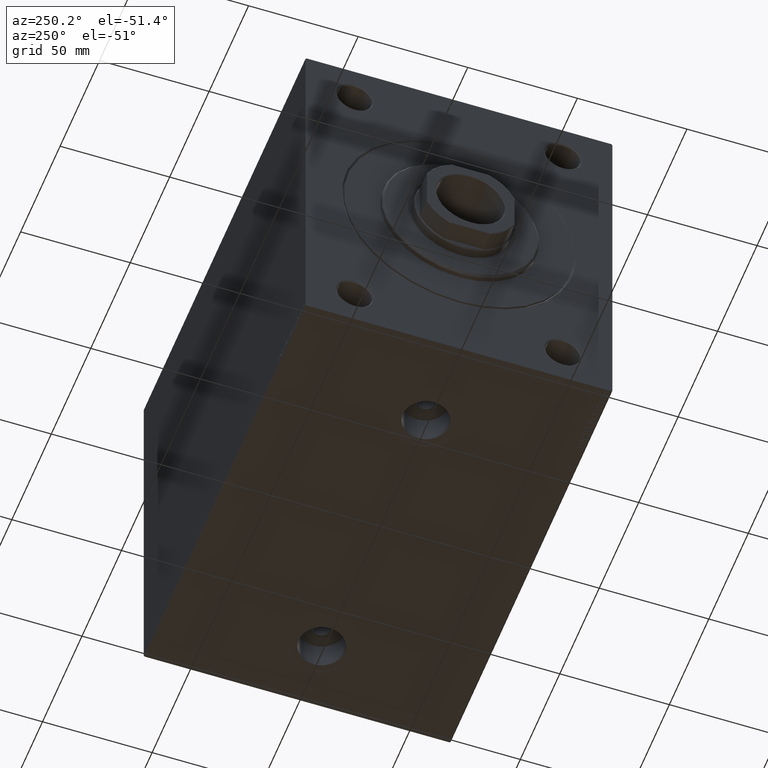
[diagram: clean part render]
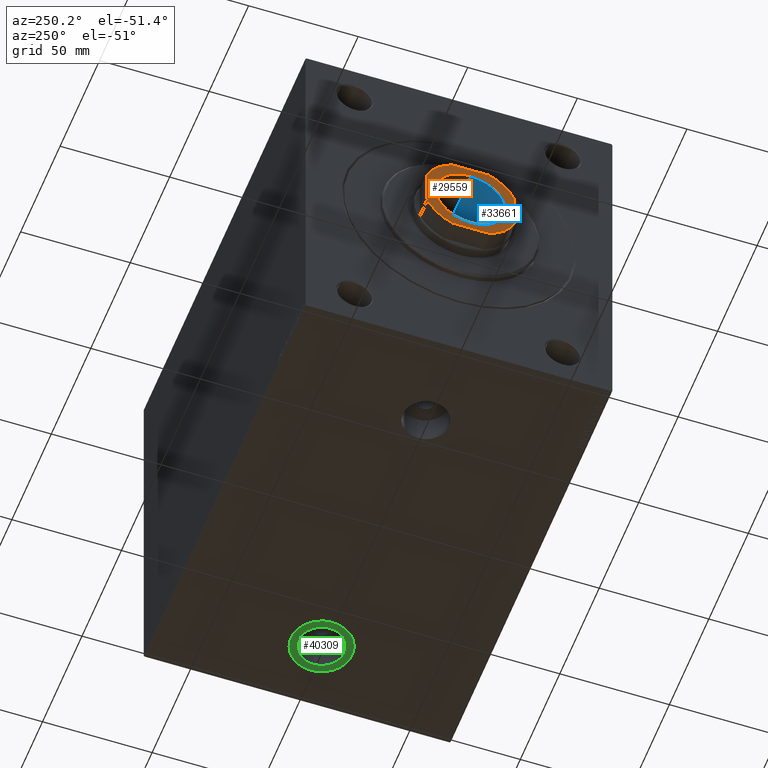
[diagram: same view with three faces highlighted in distinct colors, each labeled with its STEP entity id]
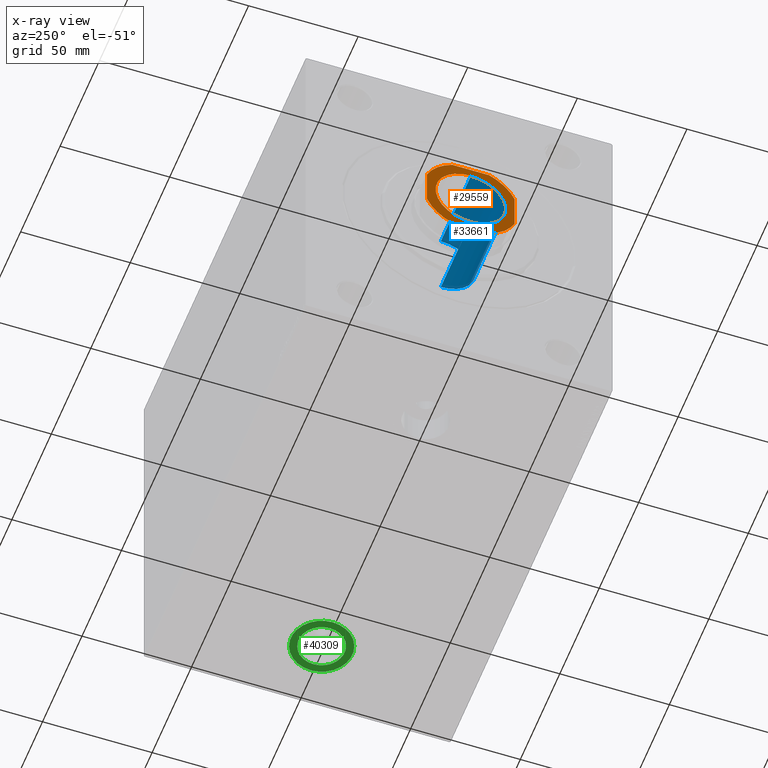
[diagram: x-ray of the same camera — body ghosted, the three highlighted faces saturated]
A machine part, auxiliary view with three faces highlighted in distinct colors.
The next image is the same camera in x-ray (body ghosted, the three faces saturated) — at least one of them is partly hidden behind the body in this view.
Their STEP definitions:

[orange] entity #29559 — the highlighted planar face has unit normal (-1, 0, 0).
#63 = CIRCLE ( 'NONE', #19261, 16.05000000000000782 ) ;
#158 = VERTEX_POINT ( 'NONE', #31701 ) ;
#343 = ORIENTED_EDGE ( 'NONE', *, *, #881, .T. ) ;
#509 = CARTESIAN_POINT ( 'NONE',  ( 16.05000000000000782, 0.000000000000000000, 194.0000000000000000 ) ) ;
#881 = EDGE_CURVE ( 'NONE', #14199, #7700, #14879, .T. ) ;
#1014 = DIRECTION ( 'NONE',  ( 2.602085213965210642E-16, -1.000000000000000000, 0.000000000000000000 ) ) ;
#1492 = ORIENTED_EDGE ( 'NONE', *, *, #15935, .T. ) ;
#1916 = CARTESIAN_POINT ( 'NONE',  ( 0.000000000000000000, 0.000000000000000000, 194.0000000000000000 ) ) ;
#2940 = EDGE_CURVE ( 'NONE', #23226, #22322, #63, .T. ) ;
#3500 = CARTESIAN_POINT ( 'NONE',  ( 8.419619943916458737, 19.99999999999999289, 194.0000000000000000 ) ) ;
#5491 = DIRECTION ( 'NONE',  ( -0.000000000000000000, 0.000000000000000000, 1.000000000000000000 ) ) ;
#5597 = CIRCLE ( 'NONE', #39534, 16.05000000000000782 ) ;
#5868 = DIRECTION ( 'NONE',  ( 1.000000000000000000, 0.000000000000000000, 0.000000000000000000 ) ) ;
#6622 = ORIENTED_EDGE ( 'NONE', *, *, #36867, .T. ) ;
#6777 = CARTESIAN_POINT ( 'NONE',  ( 0.000000000000000000, 0.000000000000000000, 194.0000000000000000 ) ) ;
#6823 = EDGE_CURVE ( 'NONE', #26363, #36833, #35142, .T. ) ;
#7502 = LINE ( 'NONE', #18129, #23130 ) ;
#7593 = DIRECTION ( 'NONE',  ( 1.000000000000000000, 0.000000000000000000, 0.000000000000000000 ) ) ;
#7700 = VERTEX_POINT ( 'NONE', #38657 ) ;
#8441 = AXIS2_PLACEMENT_3D ( 'NONE', #44324, #22830, #22602 ) ;
#9450 = CARTESIAN_POINT ( 'NONE',  ( -16.05000000000000782, 1.965558112631502599E-15, 194.0000000000000000 ) ) ;
#9561 = DIRECTION ( 'NONE',  ( 0.000000000000000000, -0.000000000000000000, -1.000000000000000000 ) ) ;
#9902 = VERTEX_POINT ( 'NONE', #3500 ) ;
#10309 = CARTESIAN_POINT ( 'NONE',  ( 20.00000000000000000, -8.419619943916444527, 194.0000000000000000 ) ) ;
#10736 = AXIS2_PLACEMENT_3D ( 'NONE', #30128, #33614, #40076 ) ;
#11519 = CARTESIAN_POINT ( 'NONE',  ( 0.000000000000000000, 0.000000000000000000, 194.0000000000000000 ) ) ;
#11633 = CARTESIAN_POINT ( 'NONE',  ( -8.419619943916336169, -20.00000000000001066, 194.0000000000000000 ) ) ;
#12389 = LINE ( 'NONE', #33431, #39446 ) ;
#13106 = CARTESIAN_POINT ( 'NONE',  ( 0.000000000000000000, 0.000000000000000000, 194.0000000000000000 ) ) ;
#13538 = ORIENTED_EDGE ( 'NONE', *, *, #27160, .T. ) ;
#13707 = CIRCLE ( 'NONE', #10736, 21.69999999999986429 ) ;
#14199 = VERTEX_POINT ( 'NONE', #29720 ) ;
#14501 = EDGE_CURVE ( 'NONE', #9902, #158, #7502, .T. ) ;
#14879 = LINE ( 'NONE', #25490, #36922 ) ;
#15220 = DIRECTION ( 'NONE',  ( 0.000000000000000000, -0.000000000000000000, -1.000000000000000000 ) ) ;
#15386 = ORIENTED_EDGE ( 'NONE', *, *, #14501, .T. ) ;
#15754 = AXIS2_PLACEMENT_3D ( 'NONE', #13106, #5491, #44990 ) ;
#15935 = EDGE_CURVE ( 'NONE', #158, #14199, #29085, .T. ) ;
#16258 = CARTESIAN_POINT ( 'NONE',  ( 19.99999999999999289, 8.419619943916455185, 194.0000000000000000 ) ) ;
#18005 = AXIS2_PLACEMENT_3D ( 'NONE', #24507, #31703, #38624 ) ;
#18129 = CARTESIAN_POINT ( 'NONE',  ( -20.00000000000000711, 19.99999999999998934, 194.0000000000000000 ) ) ;
#19261 = AXIS2_PLACEMENT_3D ( 'NONE', #11519, #15220, #7593 ) ;
#19740 = EDGE_LOOP ( 'NONE', ( #40856, #40414 ) ) ;
#19822 = PLANE ( 'NONE',  #8441 ) ;
#20139 = DIRECTION ( 'NONE',  ( 1.000000000000000000, 0.000000000000000000, 0.000000000000000000 ) ) ;
#22322 = VERTEX_POINT ( 'NONE', #509 ) ;
#22602 = DIRECTION ( 'NONE',  ( 1.000000000000000000, 0.000000000000000000, 0.000000000000000000 ) ) ;
#22830 = DIRECTION ( 'NONE',  ( -0.000000000000000000, 0.000000000000000000, 1.000000000000000000 ) ) ;
#23116 = VERTEX_POINT ( 'NONE', #42750 ) ;
#23118 = CIRCLE ( 'NONE', #15754, 21.69999999999989626 ) ;
#23130 = VECTOR ( 'NONE', #39387, 1000.000000000000000 ) ;
#23226 = VERTEX_POINT ( 'NONE', #9450 ) ;
#24402 = EDGE_LOOP ( 'NONE', ( #25820, #43788, #15386, #1492, #343, #6622, #38323, #13538 ) ) ;
#24507 = CARTESIAN_POINT ( 'NONE',  ( 0.000000000000000000, 0.000000000000000000, 194.0000000000000000 ) ) ;
#25490 = CARTESIAN_POINT ( 'NONE',  ( -20.00000000000000711, 19.99999999999998934, 194.0000000000000000 ) ) ;
#25727 = AXIS2_PLACEMENT_3D ( 'NONE', #1916, #44192, #20139 ) ;
#25820 = ORIENTED_EDGE ( 'NONE', *, *, #6823, .T. ) ;
#26363 = VERTEX_POINT ( 'NONE', #10309 ) ;
#26976 = FACE_BOUND ( 'NONE', #19740, .T. ) ;
#27160 = EDGE_CURVE ( 'NONE', #23116, #26363, #23118, .T. ) ;
#27960 = DIRECTION ( 'NONE',  ( -2.602085213965210149E-16, 1.000000000000000000, -0.000000000000000000 ) ) ;
#29085 = CIRCLE ( 'NONE', #18005, 21.69999999999986429 ) ;
#29559 = ADVANCED_FACE ( 'NONE', ( #26976, #40173 ), #19822, .T. ) ;
#29720 = CARTESIAN_POINT ( 'NONE',  ( -20.00000000000000355, 8.419619943916343274, 194.0000000000000000 ) ) ;
#29863 = EDGE_CURVE ( 'NONE', #44562, #23116, #12389, .T. ) ;
#30128 = CARTESIAN_POINT ( 'NONE',  ( 0.000000000000000000, 0.000000000000000000, 194.0000000000000000 ) ) ;
#31701 = CARTESIAN_POINT ( 'NONE',  ( -8.419619943916378801, 19.99999999999999289, 194.0000000000000000 ) ) ;
#31703 = DIRECTION ( 'NONE',  ( -0.000000000000000000, 0.000000000000000000, 1.000000000000000000 ) ) ;
#33431 = CARTESIAN_POINT ( 'NONE',  ( -19.99999999999999645, -20.00000000000001066, 194.0000000000000000 ) ) ;
#33614 = DIRECTION ( 'NONE',  ( -0.000000000000000000, 0.000000000000000000, 1.000000000000000000 ) ) ;
#35142 = LINE ( 'NONE', #37917, #43706 ) ;
#36833 = VERTEX_POINT ( 'NONE', #16258 ) ;
#36867 = EDGE_CURVE ( 'NONE', #7700, #44562, #13707, .T. ) ;
#36922 = VECTOR ( 'NONE', #1014, 1000.000000000000000 ) ;
#36973 = EDGE_CURVE ( 'NONE', #22322, #23226, #5597, .T. ) ;
#37917 = CARTESIAN_POINT ( 'NONE',  ( 19.99999999999999289, 19.99999999999999289, 194.0000000000000000 ) ) ;
#38323 = ORIENTED_EDGE ( 'NONE', *, *, #29863, .T. ) ;
#38624 = DIRECTION ( 'NONE',  ( 1.000000000000000000, 0.000000000000000000, 0.000000000000000000 ) ) ;
#38657 = CARTESIAN_POINT ( 'NONE',  ( -20.00000000000000000, -8.419619943916355709, 194.0000000000000000 ) ) ;
#39387 = DIRECTION ( 'NONE',  ( -1.000000000000000000, -8.673617379884035472E-17, -0.000000000000000000 ) ) ;
#39446 = VECTOR ( 'NONE', #43819, 1000.000000000000000 ) ;
#39534 = AXIS2_PLACEMENT_3D ( 'NONE', #6777, #9561, #5868 ) ;
#40076 = DIRECTION ( 'NONE',  ( 1.000000000000000000, 0.000000000000000000, 0.000000000000000000 ) ) ;
#40173 = FACE_OUTER_BOUND ( 'NONE', #24402, .T. ) ;
#40414 = ORIENTED_EDGE ( 'NONE', *, *, #2940, .T. ) ;
#40856 = ORIENTED_EDGE ( 'NONE', *, *, #36973, .T. ) ;
#42750 = CARTESIAN_POINT ( 'NONE',  ( 8.419619943916416105, -20.00000000000001066, 194.0000000000000000 ) ) ;
#43706 = VECTOR ( 'NONE', #27960, 1000.000000000000000 ) ;
#43788 = ORIENTED_EDGE ( 'NONE', *, *, #44760, .T. ) ;
#43819 = DIRECTION ( 'NONE',  ( 1.000000000000000000, 0.000000000000000000, 0.000000000000000000 ) ) ;
#44192 = DIRECTION ( 'NONE',  ( -0.000000000000000000, 0.000000000000000000, 1.000000000000000000 ) ) ;
#44324 = CARTESIAN_POINT ( 'NONE',  ( 0.000000000000000000, 0.000000000000000000, 194.0000000000000000 ) ) ;
#44562 = VERTEX_POINT ( 'NONE', #11633 ) ;
#44760 = EDGE_CURVE ( 'NONE', #36833, #9902, #45670, .T. ) ;
#44990 = DIRECTION ( 'NONE',  ( 1.000000000000000000, 0.000000000000000000, 0.000000000000000000 ) ) ;
#45670 = CIRCLE ( 'NONE', #25727, 21.69999999999989626 ) ;

[blue] entity #33661 — the highlighted cylindrical surface (partial cylindrical patch) has radius 15.75 mm, axis along (-1, 0, 0).
#332 = CIRCLE ( 'NONE', #40170, 15.74999999999999289 ) ;
#4884 = AXIS2_PLACEMENT_3D ( 'NONE', #30148, #30369, #9122 ) ;
#9122 = DIRECTION ( 'NONE',  ( 1.000000000000000000, 0.000000000000000000, 0.000000000000000000 ) ) ;
#10491 = CARTESIAN_POINT ( 'NONE',  ( -15.74999999999999289, 1.928818708657080556E-15, 193.6999999999999602 ) ) ;
#11515 = FACE_OUTER_BOUND ( 'NONE', #16886, .T. ) ;
#12912 = VECTOR ( 'NONE', #27954, 1000.000000000000000 ) ;
#12992 = CIRCLE ( 'NONE', #17400, 15.74999999999999289 ) ;
#15537 = VERTEX_POINT ( 'NONE', #10491 ) ;
#16055 = DIRECTION ( 'NONE',  ( -0.000000000000000000, -0.000000000000000000, 1.000000000000000000 ) ) ;
#16627 = EDGE_CURVE ( 'NONE', #15537, #29722, #332, .T. ) ;
#16820 = CARTESIAN_POINT ( 'NONE',  ( 15.74999999999999289, 0.000000000000000000, 193.6999999999999602 ) ) ;
#16886 = EDGE_LOOP ( 'NONE', ( #44680, #43877, #21585, #38855 ) ) ;
#17400 = AXIS2_PLACEMENT_3D ( 'NONE', #19738, #16055, #40993 ) ;
#17556 = CARTESIAN_POINT ( 'NONE',  ( -15.74999999999999289, 1.928818708657080556E-15, 194.0000000000000000 ) ) ;
#19310 = VERTEX_POINT ( 'NONE', #36606 ) ;
#19738 = CARTESIAN_POINT ( 'NONE',  ( 0.000000000000000000, 0.000000000000000000, 156.0000000000000000 ) ) ;
#20170 = EDGE_CURVE ( 'NONE', #19310, #20508, #12992, .T. ) ;
#20508 = VERTEX_POINT ( 'NONE', #28837 ) ;
#21585 = ORIENTED_EDGE ( 'NONE', *, *, #16627, .T. ) ;
#22135 = EDGE_CURVE ( 'NONE', #20508, #29722, #26855, .T. ) ;
#22311 = CARTESIAN_POINT ( 'NONE',  ( 0.000000000000000000, 0.000000000000000000, 193.6999999999999602 ) ) ;
#24816 = VECTOR ( 'NONE', #37508, 1000.000000000000000 ) ;
#25999 = DIRECTION ( 'NONE',  ( 0.000000000000000000, 0.000000000000000000, 1.000000000000000000 ) ) ;
#26855 = LINE ( 'NONE', #44426, #24816 ) ;
#27954 = DIRECTION ( 'NONE',  ( -0.000000000000000000, -0.000000000000000000, 1.000000000000000000 ) ) ;
#28837 = CARTESIAN_POINT ( 'NONE',  ( 15.74999999999999289, 0.000000000000000000, 156.0000000000000000 ) ) ;
#29722 = VERTEX_POINT ( 'NONE', #16820 ) ;
#30148 = CARTESIAN_POINT ( 'NONE',  ( 0.000000000000000000, 0.000000000000000000, 194.0000000000000000 ) ) ;
#30369 = DIRECTION ( 'NONE',  ( -0.000000000000000000, -0.000000000000000000, 1.000000000000000000 ) ) ;
#30560 = EDGE_CURVE ( 'NONE', #19310, #15537, #32126, .T. ) ;
#32126 = LINE ( 'NONE', #17556, #12912 ) ;
#33423 = DIRECTION ( 'NONE',  ( 1.000000000000000000, 0.000000000000000000, 0.000000000000000000 ) ) ;
#33661 = ADVANCED_FACE ( 'NONE', ( #11515 ), #43171, .F. ) ;
#36606 = CARTESIAN_POINT ( 'NONE',  ( -15.74999999999999289, 1.928818708657080556E-15, 156.0000000000000000 ) ) ;
#37508 = DIRECTION ( 'NONE',  ( -0.000000000000000000, -0.000000000000000000, 1.000000000000000000 ) ) ;
#38855 = ORIENTED_EDGE ( 'NONE', *, *, #22135, .F. ) ;
#40170 = AXIS2_PLACEMENT_3D ( 'NONE', #22311, #25999, #33423 ) ;
#40993 = DIRECTION ( 'NONE',  ( 1.000000000000000000, 0.000000000000000000, 0.000000000000000000 ) ) ;
#43171 = CYLINDRICAL_SURFACE ( 'NONE', #4884, 15.74999999999999289 ) ;
#43877 = ORIENTED_EDGE ( 'NONE', *, *, #30560, .T. ) ;
#44426 = CARTESIAN_POINT ( 'NONE',  ( 15.74999999999999289, 0.000000000000000000, 194.0000000000000000 ) ) ;
#44680 = ORIENTED_EDGE ( 'NONE', *, *, #20170, .F. ) ;

[green] entity #40309 — the highlighted planar face has unit normal (0, 0, -1).
#1371 = CARTESIAN_POINT ( 'NONE',  ( 174.0000000000000000, -2.660528492099898170E-14, -84.90000000000000568 ) ) ;
#1757 = CIRCLE ( 'NONE', #37176, 14.00000000000001243 ) ;
#2902 = CARTESIAN_POINT ( 'NONE',  ( 184.4799999999999898, -2.532185507549255936E-14, -84.90000000000000568 ) ) ;
#3133 = EDGE_CURVE ( 'NONE', #31499, #40770, #22943, .T. ) ;
#4919 = EDGE_LOOP ( 'NONE', ( #41957, #34766 ) ) ;
#4966 = VERTEX_POINT ( 'NONE', #2902 ) ;
#5290 = CARTESIAN_POINT ( 'NONE',  ( 174.0000000000000000, -2.660528492099898170E-14, -84.90000000000000568 ) ) ;
#6080 = DIRECTION ( 'NONE',  ( 0.000000000000000000, 0.000000000000000000, -1.000000000000000000 ) ) ;
#7423 = CARTESIAN_POINT ( 'NONE',  ( 174.0000000000000000, -2.660528492099898170E-14, -84.90000000000000568 ) ) ;
#9958 = EDGE_CURVE ( 'NONE', #40770, #31499, #1757, .T. ) ;
#11460 = DIRECTION ( 'NONE',  ( -1.000000000000000000, 0.000000000000000000, 0.000000000000000000 ) ) ;
#11760 = PLANE ( 'NONE',  #38156 ) ;
#13242 = DIRECTION ( 'NONE',  ( -1.000000000000000000, 0.000000000000000000, 0.000000000000000000 ) ) ;
#15455 = DIRECTION ( 'NONE',  ( -1.000000000000000000, 0.000000000000000000, 0.000000000000000000 ) ) ;
#17492 = CIRCLE ( 'NONE', #29310, 10.47999999999998977 ) ;
#19141 = DIRECTION ( 'NONE',  ( -1.000000000000000000, 0.000000000000000000, -0.000000000000000000 ) ) ;
#19480 = CARTESIAN_POINT ( 'NONE',  ( 174.0000000000000000, -2.660528492099898170E-14, -84.90000000000000568 ) ) ;
#21911 = CIRCLE ( 'NONE', #23389, 10.47999999999998977 ) ;
#21964 = DIRECTION ( 'NONE',  ( -1.000000000000000000, 0.000000000000000000, 0.000000000000000000 ) ) ;
#22825 = FACE_BOUND ( 'NONE', #4919, .T. ) ;
#22943 = CIRCLE ( 'NONE', #42123, 14.00000000000001243 ) ;
#23389 = AXIS2_PLACEMENT_3D ( 'NONE', #19480, #6080, #13242 ) ;
#26516 = DIRECTION ( 'NONE',  ( 0.000000000000000000, 0.000000000000000000, -1.000000000000000000 ) ) ;
#29310 = AXIS2_PLACEMENT_3D ( 'NONE', #5290, #26516, #15455 ) ;
#29540 = FACE_OUTER_BOUND ( 'NONE', #40471, .T. ) ;
#31499 = VERTEX_POINT ( 'NONE', #36504 ) ;
#32209 = ORIENTED_EDGE ( 'NONE', *, *, #3133, .T. ) ;
#32279 = DIRECTION ( 'NONE',  ( 0.000000000000000000, 0.000000000000000000, -1.000000000000000000 ) ) ;
#33068 = DIRECTION ( 'NONE',  ( 0.000000000000000000, 0.000000000000000000, -1.000000000000000000 ) ) ;
#33490 = VERTEX_POINT ( 'NONE', #37649 ) ;
#34766 = ORIENTED_EDGE ( 'NONE', *, *, #40424, .F. ) ;
#35733 = CARTESIAN_POINT ( 'NONE',  ( 174.0000000000000000, -2.660528492099898170E-14, -84.90000000000000568 ) ) ;
#36252 = DIRECTION ( 'NONE',  ( 0.000000000000000000, 0.000000000000000000, -1.000000000000000000 ) ) ;
#36504 = CARTESIAN_POINT ( 'NONE',  ( 188.0000000000000000, -2.489077940219269278E-14, -84.90000000000000568 ) ) ;
#37176 = AXIS2_PLACEMENT_3D ( 'NONE', #7423, #33068, #21964 ) ;
#37649 = CARTESIAN_POINT ( 'NONE',  ( 163.5200000000000102, -2.660528492099898170E-14, -84.90000000000000568 ) ) ;
#38156 = AXIS2_PLACEMENT_3D ( 'NONE', #1371, #36252, #19141 ) ;
#40117 = CARTESIAN_POINT ( 'NONE',  ( 159.9999999999999716, -2.660528492099898170E-14, -84.90000000000000568 ) ) ;
#40309 = ADVANCED_FACE ( 'NONE', ( #22825, #29540 ), #11760, .T. ) ;
#40424 = EDGE_CURVE ( 'NONE', #4966, #33490, #17492, .T. ) ;
#40471 = EDGE_LOOP ( 'NONE', ( #45423, #32209 ) ) ;
#40770 = VERTEX_POINT ( 'NONE', #40117 ) ;
#41140 = EDGE_CURVE ( 'NONE', #33490, #4966, #21911, .T. ) ;
#41957 = ORIENTED_EDGE ( 'NONE', *, *, #41140, .F. ) ;
#42123 = AXIS2_PLACEMENT_3D ( 'NONE', #35733, #32279, #11460 ) ;
#45423 = ORIENTED_EDGE ( 'NONE', *, *, #9958, .T. ) ;